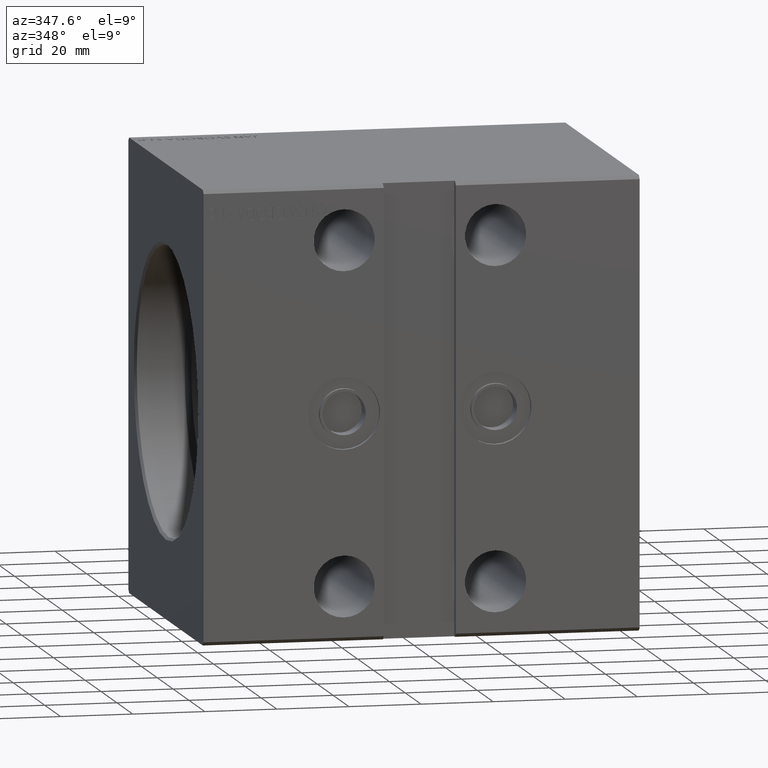
[diagram: clean part render]
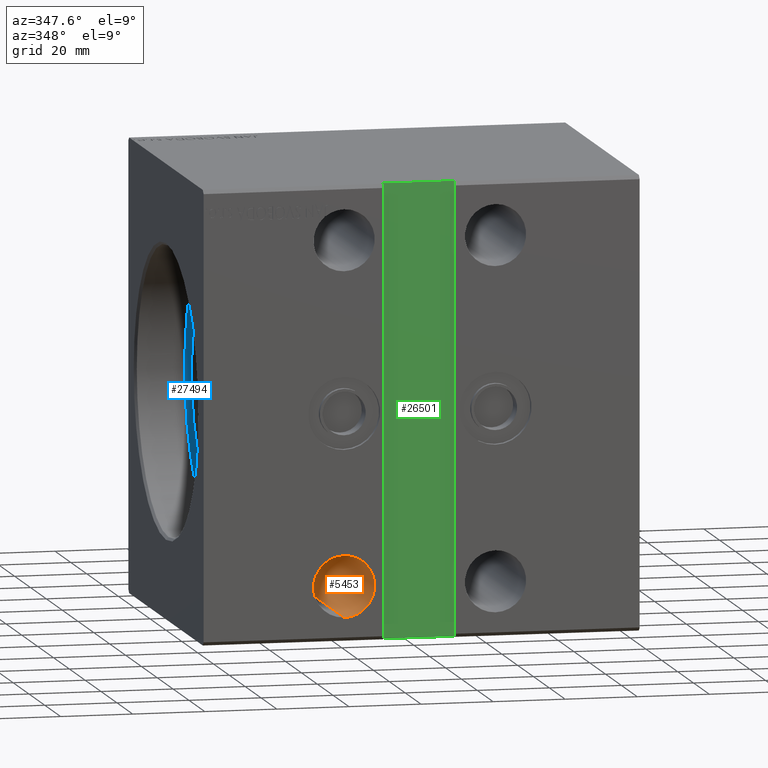
[diagram: same view with three faces highlighted in distinct colors, each labeled with its STEP entity id]
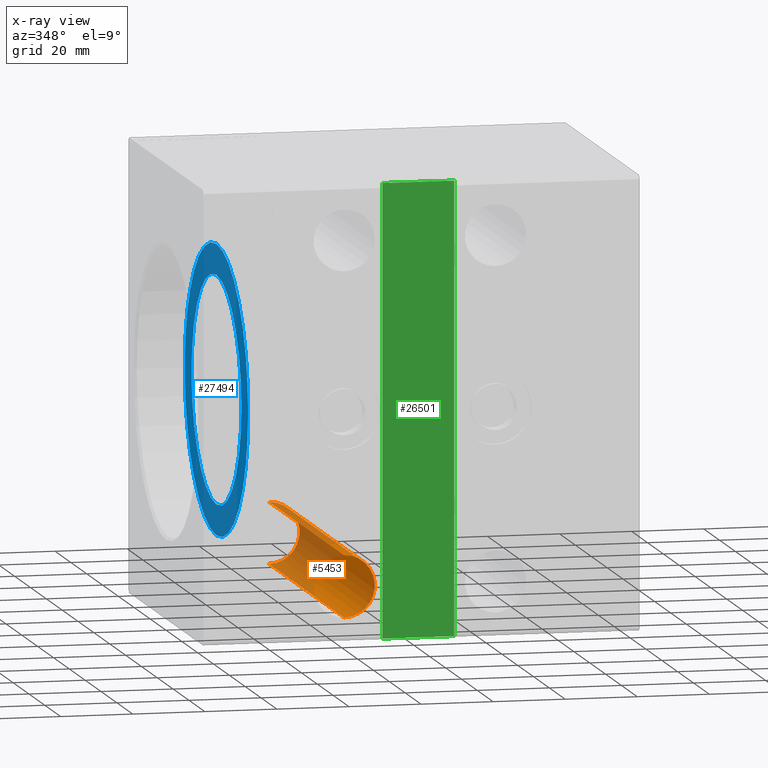
[diagram: x-ray of the same camera — body ghosted, the three highlighted faces saturated]
A machine part, auxiliary view with three faces highlighted in distinct colors.
The next image is the same camera in x-ray (body ghosted, the three faces saturated) — at least one of them is partly hidden behind the body in this view.
Their STEP definitions:

[orange] entity #5453 — the highlighted cylindrical surface (edge-blend (fillet) strip) has radius 8.5 mm, axis along (-0, -1, -0).
#477 = AXIS2_PLACEMENT_3D ( 'NONE', #11378, #24715, #21944 ) ;
#1622 = EDGE_CURVE ( 'NONE', #4378, #5332, #10492, .T. ) ;
#1989 = ORIENTED_EDGE ( 'NONE', *, *, #29900, .F. ) ;
#1998 = FACE_OUTER_BOUND ( 'NONE', #36497, .T. ) ;
#2715 = VECTOR ( 'NONE', #13416, 1000.000000000000000 ) ;
#3326 = DIRECTION ( 'NONE',  ( -0.000000000000000000, 1.000000000000000000, 5.507058653894625853E-17 ) ) ;
#3928 = CARTESIAN_POINT ( 'NONE',  ( 39.00000000000000000, -47.50000000000000711, -56.00000000000002132 ) ) ;
#4260 = CARTESIAN_POINT ( 'NONE',  ( 39.00000000000000000, 47.50000000000003553, -56.00000000000000711 ) ) ;
#4378 = VERTEX_POINT ( 'NONE', #31711 ) ;
#5332 = VERTEX_POINT ( 'NONE', #39430 ) ;
#5453 = ADVANCED_FACE ( 'NONE', ( #1998 ), #31521, .F. ) ;
#6133 = ORIENTED_EDGE ( 'NONE', *, *, #30729, .T. ) ;
#6254 = ORIENTED_EDGE ( 'NONE', *, *, #1622, .T. ) ;
#8422 = DIRECTION ( 'NONE',  ( -0.000000000000000000, -1.000000000000000000, -5.507058653894625853E-17 ) ) ;
#9444 = CIRCLE ( 'NONE', #12163, 8.500000000000007105 ) ;
#10492 = CIRCLE ( 'NONE', #39647, 8.500000000000000000 ) ;
#11378 = CARTESIAN_POINT ( 'NONE',  ( 39.00000000000000000, 47.50000000000003553, -47.50000000000000711 ) ) ;
#11608 = CARTESIAN_POINT ( 'NONE',  ( 39.00000000000000000, 47.50000000000003553, -39.00000000000000711 ) ) ;
#12163 = AXIS2_PLACEMENT_3D ( 'NONE', #30918, #28160, #34294 ) ;
#13285 = VERTEX_POINT ( 'NONE', #3928 ) ;
#13416 = DIRECTION ( 'NONE',  ( -0.000000000000000000, -1.000000000000000000, -5.507058653894625853E-17 ) ) ;
#15848 = DIRECTION ( 'NONE',  ( 0.000000000000000000, 0.000000000000000000, 1.000000000000000000 ) ) ;
#15954 = CARTESIAN_POINT ( 'NONE',  ( 39.00000000000000000, -47.50000000000000711, -39.00000000000000711 ) ) ;
#16061 = VERTEX_POINT ( 'NONE', #15954 ) ;
#20995 = ORIENTED_EDGE ( 'NONE', *, *, #33851, .T. ) ;
#21944 = DIRECTION ( 'NONE',  ( 0.000000000000000000, 0.000000000000000000, -1.000000000000000000 ) ) ;
#24523 = LINE ( 'NONE', #11608, #24989 ) ;
#24715 = DIRECTION ( 'NONE',  ( -0.000000000000000000, -1.000000000000000000, -5.507058653894625853E-17 ) ) ;
#24989 = VECTOR ( 'NONE', #8422, 1000.000000000000000 ) ;
#28160 = DIRECTION ( 'NONE',  ( 0.000000000000000000, -1.000000000000000000, -1.692413147294446216E-16 ) ) ;
#29900 = EDGE_CURVE ( 'NONE', #4378, #16061, #24523, .T. ) ;
#30729 = EDGE_CURVE ( 'NONE', #13285, #16061, #9444, .T. ) ;
#30918 = CARTESIAN_POINT ( 'NONE',  ( 39.00000000000000000, -47.50000000000000711, -47.50000000000001421 ) ) ;
#31521 = CYLINDRICAL_SURFACE ( 'NONE', #477, 8.500000000000000000 ) ;
#31711 = CARTESIAN_POINT ( 'NONE',  ( 39.00000000000000000, 47.50000000000003553, -39.00000000000000711 ) ) ;
#33345 = LINE ( 'NONE', #4260, #2715 ) ;
#33851 = EDGE_CURVE ( 'NONE', #5332, #13285, #33345, .T. ) ;
#34294 = DIRECTION ( 'NONE',  ( 0.000000000000000000, 0.000000000000000000, 1.000000000000000000 ) ) ;
#35382 = CARTESIAN_POINT ( 'NONE',  ( 39.00000000000000000, 47.50000000000003553, -47.50000000000000711 ) ) ;
#36497 = EDGE_LOOP ( 'NONE', ( #1989, #6254, #20995, #6133 ) ) ;
#39430 = CARTESIAN_POINT ( 'NONE',  ( 39.00000000000000000, 47.50000000000003553, -56.00000000000000711 ) ) ;
#39647 = AXIS2_PLACEMENT_3D ( 'NONE', #35382, #3326, #15848 ) ;

[blue] entity #27494 — the highlighted planar face has unit normal (-1, 0, 0).
#1559 = DIRECTION ( 'NONE',  ( -1.000000000000000000, 0.000000000000000000, 0.000000000000000000 ) ) ;
#2862 = CARTESIAN_POINT ( 'NONE',  ( 13.99999999999999822, 0.000000000000000000, 0.000000000000000000 ) ) ;
#3121 = CARTESIAN_POINT ( 'NONE',  ( 14.00000000000000000, 0.000000000000000000, 0.000000000000000000 ) ) ;
#3305 = PLANE ( 'NONE',  #12108 ) ;
#3500 = DIRECTION ( 'NONE',  ( -1.000000000000000000, 0.000000000000000000, 0.000000000000000000 ) ) ;
#3866 = EDGE_LOOP ( 'NONE', ( #18655, #23487 ) ) ;
#4283 = EDGE_CURVE ( 'NONE', #34338, #8319, #26242, .T. ) ;
#4530 = CIRCLE ( 'NONE', #26901, 40.00000000000000000 ) ;
#5570 = CARTESIAN_POINT ( 'NONE',  ( 13.99999999999999822, 3.857637417314162689E-15, -31.50000000000000000 ) ) ;
#5765 = CARTESIAN_POINT ( 'NONE',  ( 14.00000000000000000, 0.000000000000000000, 0.000000000000000000 ) ) ;
#5866 = EDGE_CURVE ( 'NONE', #11572, #6241, #40297, .T. ) ;
#6241 = VERTEX_POINT ( 'NONE', #11397 ) ;
#6779 = DIRECTION ( 'NONE',  ( 0.000000000000000000, 0.000000000000000000, 1.000000000000000000 ) ) ;
#8007 = ORIENTED_EDGE ( 'NONE', *, *, #5866, .T. ) ;
#8116 = FACE_BOUND ( 'NONE', #3866, .T. ) ;
#8319 = VERTEX_POINT ( 'NONE', #5570 ) ;
#9767 = CARTESIAN_POINT ( 'NONE',  ( 14.00000000000000000, 0.000000000000000000, 0.000000000000000000 ) ) ;
#11397 = CARTESIAN_POINT ( 'NONE',  ( 14.00000000000000000, 4.898587196589413026E-15, -40.00000000000000000 ) ) ;
#11571 = DIRECTION ( 'NONE',  ( 0.000000000000000000, 0.000000000000000000, 1.000000000000000000 ) ) ;
#11572 = VERTEX_POINT ( 'NONE', #24268 ) ;
#12108 = AXIS2_PLACEMENT_3D ( 'NONE', #5765, #41459, #31240 ) ;
#12329 = ORIENTED_EDGE ( 'NONE', *, *, #23119, .T. ) ;
#16334 = DIRECTION ( 'NONE',  ( -1.000000000000000000, 0.000000000000000000, 0.000000000000000000 ) ) ;
#18655 = ORIENTED_EDGE ( 'NONE', *, *, #4283, .F. ) ;
#21028 = FACE_OUTER_BOUND ( 'NONE', #33808, .T. ) ;
#23119 = EDGE_CURVE ( 'NONE', #6241, #11572, #4530, .T. ) ;
#23487 = ORIENTED_EDGE ( 'NONE', *, *, #30063, .F. ) ;
#24268 = CARTESIAN_POINT ( 'NONE',  ( 14.00000000000000000, 0.000000000000000000, 40.00000000000000000 ) ) ;
#24699 = CARTESIAN_POINT ( 'NONE',  ( 13.99999999999999822, 0.000000000000000000, 0.000000000000000000 ) ) ;
#25580 = DIRECTION ( 'NONE',  ( 0.000000000000000000, 0.000000000000000000, 1.000000000000000000 ) ) ;
#26242 = CIRCLE ( 'NONE', #40525, 31.50000000000000000 ) ;
#26901 = AXIS2_PLACEMENT_3D ( 'NONE', #3121, #38193, #31798 ) ;
#27349 = CARTESIAN_POINT ( 'NONE',  ( 13.99999999999999822, 0.000000000000000000, 31.50000000000000000 ) ) ;
#27494 = ADVANCED_FACE ( 'NONE', ( #8116, #21028 ), #3305, .T. ) ;
#29752 = AXIS2_PLACEMENT_3D ( 'NONE', #2862, #3500, #25580 ) ;
#30063 = EDGE_CURVE ( 'NONE', #8319, #34338, #33802, .T. ) ;
#31240 = DIRECTION ( 'NONE',  ( 0.000000000000000000, 0.000000000000000000, 1.000000000000000000 ) ) ;
#31798 = DIRECTION ( 'NONE',  ( 0.000000000000000000, 0.000000000000000000, 1.000000000000000000 ) ) ;
#33802 = CIRCLE ( 'NONE', #29752, 31.50000000000000000 ) ;
#33808 = EDGE_LOOP ( 'NONE', ( #8007, #12329 ) ) ;
#34338 = VERTEX_POINT ( 'NONE', #27349 ) ;
#38193 = DIRECTION ( 'NONE',  ( -1.000000000000000000, 0.000000000000000000, 0.000000000000000000 ) ) ;
#38929 = AXIS2_PLACEMENT_3D ( 'NONE', #9767, #16334, #6779 ) ;
#40297 = CIRCLE ( 'NONE', #38929, 40.00000000000000000 ) ;
#40525 = AXIS2_PLACEMENT_3D ( 'NONE', #24699, #1559, #11571 ) ;
#41459 = DIRECTION ( 'NONE',  ( -1.000000000000000000, 0.000000000000000000, 0.000000000000000000 ) ) ;

[green] entity #26501 — the highlighted planar face has unit normal (0, -1, 0).
#129 = ORIENTED_EDGE ( 'NONE', *, *, #33296, .T. ) ;
#480 = CARTESIAN_POINT ( 'NONE',  ( 70.00000000000000000, -45.50000000000000711, 62.49999999999997868 ) ) ;
#1763 = LINE ( 'NONE', #11776, #3849 ) ;
#2665 = ORIENTED_EDGE ( 'NONE', *, *, #12421, .T. ) ;
#2820 = DIRECTION ( 'NONE',  ( 0.000000000000000000, -1.000000000000000000, 0.000000000000000000 ) ) ;
#3169 = LINE ( 'NONE', #26707, #16286 ) ;
#3837 = VECTOR ( 'NONE', #6950, 1000.000000000000000 ) ;
#3849 = VECTOR ( 'NONE', #25125, 1000.000000000000000 ) ;
#5268 = AXIS2_PLACEMENT_3D ( 'NONE', #16205, #2820, #9001 ) ;
#6950 = DIRECTION ( 'NONE',  ( -1.110223024625156540E-16, -0.000000000000000000, 1.000000000000000000 ) ) ;
#7196 = DIRECTION ( 'NONE',  ( 1.110223024625156540E-16, 0.000000000000000000, -1.000000000000000000 ) ) ;
#7370 = VERTEX_POINT ( 'NONE', #38936 ) ;
#9001 = DIRECTION ( 'NONE',  ( 0.000000000000000000, -0.000000000000000000, -1.000000000000000000 ) ) ;
#9848 = PLANE ( 'NONE',  #5268 ) ;
#11776 = CARTESIAN_POINT ( 'NONE',  ( 49.99999999999998579, -45.50000000000000711, 62.49999999999997868 ) ) ;
#11924 = EDGE_CURVE ( 'NONE', #24707, #7370, #19496, .T. ) ;
#12414 = VERTEX_POINT ( 'NONE', #37479 ) ;
#12421 = EDGE_CURVE ( 'NONE', #16584, #12414, #1763, .T. ) ;
#16205 = CARTESIAN_POINT ( 'NONE',  ( 0.000000000000000000, -45.50000000000000711, 1.101411730778925047E-16 ) ) ;
#16286 = VECTOR ( 'NONE', #7196, 1000.000000000000000 ) ;
#16584 = VERTEX_POINT ( 'NONE', #480 ) ;
#17152 = ORIENTED_EDGE ( 'NONE', *, *, #11924, .T. ) ;
#18108 = VECTOR ( 'NONE', #32439, 1000.000000000000000 ) ;
#19496 = LINE ( 'NONE', #26269, #18108 ) ;
#20797 = EDGE_LOOP ( 'NONE', ( #40130, #2665, #129, #17152 ) ) ;
#23159 = EDGE_CURVE ( 'NONE', #7370, #16584, #26666, .T. ) ;
#24707 = VERTEX_POINT ( 'NONE', #30848 ) ;
#25125 = DIRECTION ( 'NONE',  ( -1.000000000000000000, -0.000000000000000000, -0.000000000000000000 ) ) ;
#26269 = CARTESIAN_POINT ( 'NONE',  ( 50.00000000000000000, -45.50000000000000711, -62.50000000000002842 ) ) ;
#26501 = ADVANCED_FACE ( 'NONE', ( #38104 ), #9848, .T. ) ;
#26666 = LINE ( 'NONE', #33449, #3837 ) ;
#26707 = CARTESIAN_POINT ( 'NONE',  ( 49.99999999999998579, -45.50000000000000711, 62.49999999999997868 ) ) ;
#30848 = CARTESIAN_POINT ( 'NONE',  ( 50.00000000000000000, -45.50000000000000711, -62.50000000000002842 ) ) ;
#32439 = DIRECTION ( 'NONE',  ( 1.000000000000000000, 0.000000000000000000, 0.000000000000000000 ) ) ;
#33296 = EDGE_CURVE ( 'NONE', #12414, #24707, #3169, .T. ) ;
#33449 = CARTESIAN_POINT ( 'NONE',  ( 70.00000000000000000, -45.50000000000000711, 62.49999999999997868 ) ) ;
#37479 = CARTESIAN_POINT ( 'NONE',  ( 49.99999999999998579, -45.50000000000000711, 62.49999999999997868 ) ) ;
#38104 = FACE_OUTER_BOUND ( 'NONE', #20797, .T. ) ;
#38936 = CARTESIAN_POINT ( 'NONE',  ( 70.00000000000001421, -45.50000000000000711, -62.50000000000002842 ) ) ;
#40130 = ORIENTED_EDGE ( 'NONE', *, *, #23159, .T. ) ;